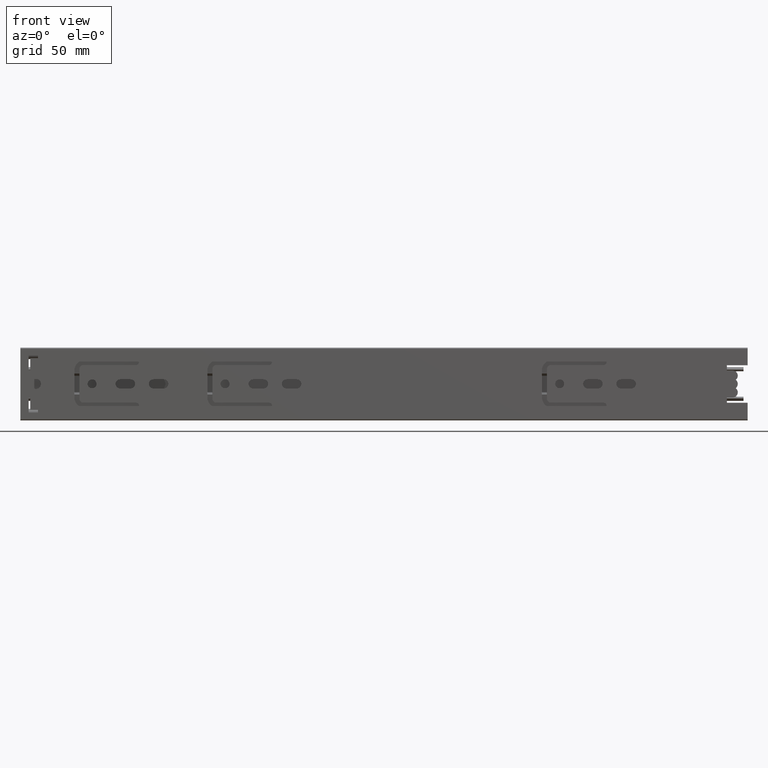
[diagram: clean part render]
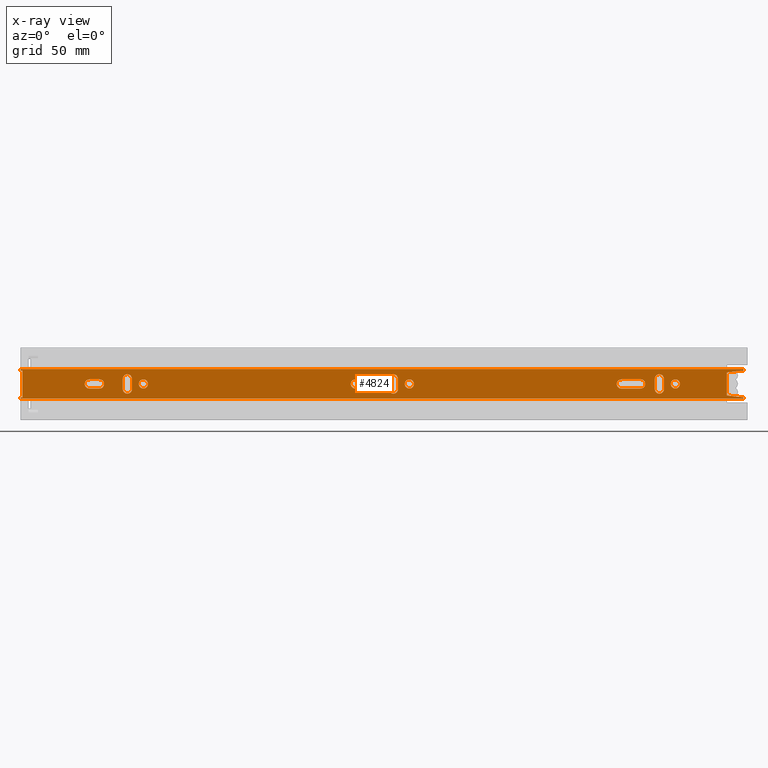
[diagram: x-ray — body ghosted, one internal face saturated and labeled with its STEP entity id]
A machine part, front view, then the same camera in x-ray: the body is ghosted and one INTERNAL B-rep face — a face not visible from any outside direction — is saturated and labeled: STEP entity #4824.
In plain terms, the highlighted planar face has unit normal (0, -1, 0).
Its self-contained STEP definition (entity closure, byte-faithful):
#203=FACE_BOUND('',#725,.T.);
#204=FACE_BOUND('',#726,.T.);
#205=FACE_BOUND('',#727,.T.);
#206=FACE_BOUND('',#728,.T.);
#207=FACE_BOUND('',#729,.T.);
#208=FACE_BOUND('',#730,.T.);
#209=FACE_BOUND('',#731,.T.);
#210=FACE_BOUND('',#732,.T.);
#211=FACE_BOUND('',#733,.T.);
#423=FACE_OUTER_BOUND('',#724,.T.);
#724=EDGE_LOOP('',(#4255,#4256,#4257,#4258,#4259,#4260,#4261,#4262,#4263,
#4264,#4265,#4266));
#725=EDGE_LOOP('',(#4267,#4268,#4269,#4270));
#726=EDGE_LOOP('',(#4271,#4272,#4273,#4274));
#727=EDGE_LOOP('',(#4275,#4276,#4277,#4278));
#728=EDGE_LOOP('',(#4279));
#729=EDGE_LOOP('',(#4280));
#730=EDGE_LOOP('',(#4281));
#731=EDGE_LOOP('',(#4282,#4283,#4284,#4285));
#732=EDGE_LOOP('',(#4286,#4287,#4288,#4289));
#733=EDGE_LOOP('',(#4290,#4291,#4292,#4293));
#1101=LINE('',#7638,#1599);
#1105=LINE('',#7650,#1603);
#1114=LINE('',#7680,#1612);
#1118=LINE('',#7693,#1616);
#1125=LINE('',#7714,#1623);
#1129=LINE('',#7722,#1627);
#1132=LINE('',#7727,#1630);
#1147=LINE('',#7787,#1645);
#1152=LINE('',#7800,#1650);
#1155=LINE('',#7807,#1653);
#1158=LINE('',#7816,#1656);
#1161=LINE('',#7823,#1659);
#1164=LINE('',#7832,#1662);
#1167=LINE('',#7839,#1665);
#1170=LINE('',#7857,#1668);
#1173=LINE('',#7864,#1671);
#1176=LINE('',#7873,#1674);
#1179=LINE('',#7880,#1677);
#1182=LINE('',#7889,#1680);
#1185=LINE('',#7896,#1683);
#1191=LINE('',#7911,#1689);
#1194=LINE('',#7918,#1692);
#1195=LINE('',#7920,#1693);
#1196=LINE('',#7922,#1694);
#1599=VECTOR('',#6237,0.649999999999999);
#1603=VECTOR('',#6245,0.649999999999999);
#1612=VECTOR('',#6274,348.);
#1616=VECTOR('',#6288,0.650000000000001);
#1623=VECTOR('',#6309,8.06225774829853);
#1627=VECTOR('',#6315,11.);
#1630=VECTOR('',#6320,8.06225774829853);
#1645=VECTOR('',#6369,0.649999999999997);
#1650=VECTOR('',#6382,9.29999999999996);
#1653=VECTOR('',#6391,9.29999999999996);
#1656=VECTOR('',#6400,4.89999999999999);
#1659=VECTOR('',#6409,4.89999999999999);
#1662=VECTOR('',#6418,4.9);
#1665=VECTOR('',#6427,4.9);
#1668=VECTOR('',#6448,4.9);
#1671=VECTOR('',#6457,4.9);
#1674=VECTOR('',#6466,4.90000000000003);
#1677=VECTOR('',#6475,4.90000000000003);
#1680=VECTOR('',#6484,9.3);
#1683=VECTOR('',#6493,9.3);
#1689=VECTOR('',#6507,13.);
#1692=VECTOR('',#6516,1.00000000000001);
#1693=VECTOR('',#6519,1.00000000000001);
#1694=VECTOR('',#6522,348.);
#1923=CIRCLE('',#5207,2.2);
#1924=CIRCLE('',#5210,2.2);
#1925=CIRCLE('',#5213,2.2);
#1926=CIRCLE('',#5216,2.2);
#1927=CIRCLE('',#5219,2.2);
#1928=CIRCLE('',#5222,2.2);
#1929=CIRCLE('',#5225,2.2);
#1930=CIRCLE('',#5227,2.2);
#1931=CIRCLE('',#5229,2.2);
#1932=CIRCLE('',#5231,2.2);
#1933=CIRCLE('',#5234,2.2);
#1934=CIRCLE('',#5237,2.2);
#1935=CIRCLE('',#5240,2.2);
#1936=CIRCLE('',#5243,2.2);
#1937=CIRCLE('',#5246,2.2);
#2266=VERTEX_POINT('',#7635);
#2267=VERTEX_POINT('',#7637);
#2272=VERTEX_POINT('',#7647);
#2273=VERTEX_POINT('',#7649);
#2284=VERTEX_POINT('',#7679);
#2288=VERTEX_POINT('',#7692);
#2294=VERTEX_POINT('',#7712);
#2295=VERTEX_POINT('',#7713);
#2298=VERTEX_POINT('',#7721);
#2327=VERTEX_POINT('',#7786);
#2329=VERTEX_POINT('',#7793);
#2330=VERTEX_POINT('',#7794);
#2331=VERTEX_POINT('',#7799);
#2332=VERTEX_POINT('',#7803);
#2333=VERTEX_POINT('',#7809);
#2334=VERTEX_POINT('',#7810);
#2335=VERTEX_POINT('',#7815);
#2336=VERTEX_POINT('',#7819);
#2337=VERTEX_POINT('',#7825);
#2338=VERTEX_POINT('',#7826);
#2339=VERTEX_POINT('',#7831);
#2340=VERTEX_POINT('',#7835);
#2341=VERTEX_POINT('',#7841);
#2342=VERTEX_POINT('',#7844);
#2343=VERTEX_POINT('',#7847);
#2344=VERTEX_POINT('',#7850);
#2345=VERTEX_POINT('',#7851);
#2346=VERTEX_POINT('',#7856);
#2347=VERTEX_POINT('',#7860);
#2348=VERTEX_POINT('',#7866);
#2349=VERTEX_POINT('',#7867);
#2350=VERTEX_POINT('',#7872);
#2351=VERTEX_POINT('',#7876);
#2352=VERTEX_POINT('',#7882);
#2353=VERTEX_POINT('',#7883);
#2354=VERTEX_POINT('',#7888);
#2355=VERTEX_POINT('',#7892);
#2359=VERTEX_POINT('',#7908);
#2360=VERTEX_POINT('',#7910);
#2876=EDGE_CURVE('',#2266,#2267,#1101,.T.);
#2882=EDGE_CURVE('',#2272,#2273,#1105,.T.);
#2897=EDGE_CURVE('',#2273,#2284,#1114,.T.);
#2904=EDGE_CURVE('',#2284,#2288,#1118,.T.);
#2914=EDGE_CURVE('',#2294,#2295,#1125,.T.);
#2918=EDGE_CURVE('',#2295,#2298,#1129,.T.);
#2921=EDGE_CURVE('',#2298,#2288,#1132,.T.);
#2951=EDGE_CURVE('',#2294,#2327,#1147,.T.);
#2955=EDGE_CURVE('',#2329,#2330,#1923,.T.);
#2958=EDGE_CURVE('',#2330,#2331,#1152,.T.);
#2960=EDGE_CURVE('',#2331,#2332,#1924,.T.);
#2962=EDGE_CURVE('',#2332,#2329,#1155,.T.);
#2963=EDGE_CURVE('',#2333,#2334,#1925,.T.);
#2966=EDGE_CURVE('',#2334,#2335,#1158,.T.);
#2968=EDGE_CURVE('',#2335,#2336,#1926,.T.);
#2970=EDGE_CURVE('',#2336,#2333,#1161,.T.);
#2971=EDGE_CURVE('',#2337,#2338,#1927,.T.);
#2974=EDGE_CURVE('',#2338,#2339,#1164,.T.);
#2976=EDGE_CURVE('',#2339,#2340,#1928,.T.);
#2978=EDGE_CURVE('',#2340,#2337,#1167,.T.);
#2979=EDGE_CURVE('',#2341,#2341,#1929,.T.);
#2980=EDGE_CURVE('',#2342,#2342,#1930,.T.);
#2981=EDGE_CURVE('',#2343,#2343,#1931,.T.);
#2982=EDGE_CURVE('',#2344,#2345,#1932,.T.);
#2985=EDGE_CURVE('',#2345,#2346,#1170,.T.);
#2987=EDGE_CURVE('',#2346,#2347,#1933,.T.);
#2989=EDGE_CURVE('',#2347,#2344,#1173,.T.);
#2990=EDGE_CURVE('',#2348,#2349,#1934,.T.);
#2993=EDGE_CURVE('',#2349,#2350,#1176,.T.);
#2995=EDGE_CURVE('',#2350,#2351,#1935,.T.);
#2997=EDGE_CURVE('',#2351,#2348,#1179,.T.);
#2998=EDGE_CURVE('',#2352,#2353,#1936,.T.);
#3001=EDGE_CURVE('',#2353,#2354,#1182,.T.);
#3003=EDGE_CURVE('',#2354,#2355,#1937,.T.);
#3005=EDGE_CURVE('',#2355,#2352,#1185,.T.);
#3012=EDGE_CURVE('',#2360,#2359,#1191,.T.);
#3016=EDGE_CURVE('',#2359,#2267,#1194,.T.);
#3017=EDGE_CURVE('',#2272,#2360,#1195,.T.);
#3018=EDGE_CURVE('',#2266,#2327,#1196,.T.);
#4255=ORIENTED_EDGE('',*,*,#2921,.T.);
#4256=ORIENTED_EDGE('',*,*,#2904,.F.);
#4257=ORIENTED_EDGE('',*,*,#2897,.F.);
#4258=ORIENTED_EDGE('',*,*,#2882,.F.);
#4259=ORIENTED_EDGE('',*,*,#3017,.T.);
#4260=ORIENTED_EDGE('',*,*,#3012,.T.);
#4261=ORIENTED_EDGE('',*,*,#3016,.T.);
#4262=ORIENTED_EDGE('',*,*,#2876,.F.);
#4263=ORIENTED_EDGE('',*,*,#3018,.T.);
#4264=ORIENTED_EDGE('',*,*,#2951,.F.);
#4265=ORIENTED_EDGE('',*,*,#2914,.T.);
#4266=ORIENTED_EDGE('',*,*,#2918,.T.);
#4267=ORIENTED_EDGE('',*,*,#2960,.T.);
#4268=ORIENTED_EDGE('',*,*,#2962,.T.);
#4269=ORIENTED_EDGE('',*,*,#2955,.T.);
#4270=ORIENTED_EDGE('',*,*,#2958,.T.);
#4271=ORIENTED_EDGE('',*,*,#2968,.T.);
#4272=ORIENTED_EDGE('',*,*,#2970,.T.);
#4273=ORIENTED_EDGE('',*,*,#2963,.T.);
#4274=ORIENTED_EDGE('',*,*,#2966,.T.);
#4275=ORIENTED_EDGE('',*,*,#2976,.T.);
#4276=ORIENTED_EDGE('',*,*,#2978,.T.);
#4277=ORIENTED_EDGE('',*,*,#2971,.T.);
#4278=ORIENTED_EDGE('',*,*,#2974,.T.);
#4279=ORIENTED_EDGE('',*,*,#2979,.T.);
#4280=ORIENTED_EDGE('',*,*,#2980,.T.);
#4281=ORIENTED_EDGE('',*,*,#2981,.T.);
#4282=ORIENTED_EDGE('',*,*,#2987,.T.);
#4283=ORIENTED_EDGE('',*,*,#2989,.T.);
#4284=ORIENTED_EDGE('',*,*,#2982,.T.);
#4285=ORIENTED_EDGE('',*,*,#2985,.T.);
#4286=ORIENTED_EDGE('',*,*,#2995,.T.);
#4287=ORIENTED_EDGE('',*,*,#2997,.T.);
#4288=ORIENTED_EDGE('',*,*,#2990,.T.);
#4289=ORIENTED_EDGE('',*,*,#2993,.T.);
#4290=ORIENTED_EDGE('',*,*,#3003,.T.);
#4291=ORIENTED_EDGE('',*,*,#3005,.T.);
#4292=ORIENTED_EDGE('',*,*,#2998,.T.);
#4293=ORIENTED_EDGE('',*,*,#3001,.T.);
#4587=PLANE('',#5256);
#4824=ADVANCED_FACE('',(#423,#203,#204,#205,#206,#207,#208,#209,#210,#211),
#4587,.T.);
#5207=AXIS2_PLACEMENT_3D('',#7795,#6376,#6377);
#5210=AXIS2_PLACEMENT_3D('',#7804,#6386,#6387);
#5213=AXIS2_PLACEMENT_3D('',#7811,#6394,#6395);
#5216=AXIS2_PLACEMENT_3D('',#7820,#6404,#6405);
#5219=AXIS2_PLACEMENT_3D('',#7827,#6412,#6413);
#5222=AXIS2_PLACEMENT_3D('',#7836,#6422,#6423);
#5225=AXIS2_PLACEMENT_3D('',#7842,#6430,#6431);
#5227=AXIS2_PLACEMENT_3D('',#7845,#6434,#6435);
#5229=AXIS2_PLACEMENT_3D('',#7848,#6438,#6439);
#5231=AXIS2_PLACEMENT_3D('',#7852,#6442,#6443);
#5234=AXIS2_PLACEMENT_3D('',#7861,#6452,#6453);
#5237=AXIS2_PLACEMENT_3D('',#7868,#6460,#6461);
#5240=AXIS2_PLACEMENT_3D('',#7877,#6470,#6471);
#5243=AXIS2_PLACEMENT_3D('',#7884,#6478,#6479);
#5246=AXIS2_PLACEMENT_3D('',#7893,#6488,#6489);
#5256=AXIS2_PLACEMENT_3D('',#7921,#6520,#6521);
#6237=DIRECTION('',(0.,0.,1.));
#6245=DIRECTION('',(0.,0.,1.));
#6274=DIRECTION('',(1.,0.,0.));
#6288=DIRECTION('',(0.,0.,-1.));
#6309=DIRECTION('',(-0.992277876713668,0.,0.124034734589209));
#6315=DIRECTION('',(0.,0.,1.));
#6320=DIRECTION('',(0.992277876713668,0.,0.124034734589209));
#6369=DIRECTION('',(0.,0.,-1.));
#6376=DIRECTION('center_axis',(0.,1.,0.));
#6377=DIRECTION('ref_axis',(0.,0.,1.));
#6382=DIRECTION('',(-1.,0.,0.));
#6386=DIRECTION('center_axis',(0.,1.,0.));
#6387=DIRECTION('ref_axis',(0.,0.,-1.));
#6391=DIRECTION('',(1.,0.,0.));
#6394=DIRECTION('center_axis',(0.,1.,0.));
#6395=DIRECTION('ref_axis',(1.,0.,0.));
#6400=DIRECTION('',(0.,0.,1.));
#6404=DIRECTION('center_axis',(0.,1.,0.));
#6405=DIRECTION('ref_axis',(-1.,0.,-5.04646829375066E-16));
#6409=DIRECTION('',(0.,0.,-1.));
#6412=DIRECTION('center_axis',(0.,1.,0.));
#6413=DIRECTION('ref_axis',(0.,0.,-1.));
#6418=DIRECTION('',(-1.,0.,0.));
#6422=DIRECTION('center_axis',(0.,1.,0.));
#6423=DIRECTION('ref_axis',(0.,0.,1.));
#6427=DIRECTION('',(1.,0.,0.));
#6430=DIRECTION('center_axis',(0.,1.,0.));
#6431=DIRECTION('ref_axis',(-1.,0.,0.));
#6434=DIRECTION('center_axis',(0.,1.,0.));
#6435=DIRECTION('ref_axis',(-1.,0.,0.));
#6438=DIRECTION('center_axis',(0.,1.,0.));
#6439=DIRECTION('ref_axis',(-1.,0.,0.));
#6442=DIRECTION('center_axis',(0.,1.,0.));
#6443=DIRECTION('ref_axis',(1.,0.,0.));
#6448=DIRECTION('',(0.,0.,1.));
#6452=DIRECTION('center_axis',(0.,1.,0.));
#6453=DIRECTION('ref_axis',(-1.,0.,0.));
#6457=DIRECTION('',(-1.81260901979617E-15,0.,-1.));
#6460=DIRECTION('center_axis',(0.,1.,0.));
#6461=DIRECTION('ref_axis',(1.,0.,-6.05576195250098E-15));
#6466=DIRECTION('',(7.25043607918466E-15,0.,1.));
#6470=DIRECTION('center_axis',(0.,1.,0.));
#6471=DIRECTION('ref_axis',(-1.,0.,6.05576195250088E-15));
#6475=DIRECTION('',(-7.25043607918466E-15,0.,-1.));
#6478=DIRECTION('center_axis',(0.,1.,0.));
#6479=DIRECTION('ref_axis',(0.,0.,1.));
#6484=DIRECTION('',(-1.,0.,-4.7751527940867E-16));
#6488=DIRECTION('center_axis',(0.,1.,0.));
#6489=DIRECTION('ref_axis',(0.,0.,-1.));
#6493=DIRECTION('',(1.,0.,2.38757639704335E-16));
#6507=DIRECTION('',(0.,0.,-1.));
#6516=DIRECTION('',(-1.,0.,0.));
#6519=DIRECTION('',(1.,0.,0.));
#6520=DIRECTION('center_axis',(0.,-1.,0.));
#6521=DIRECTION('ref_axis',(0.,0.,-1.));
#6522=DIRECTION('',(1.,0.,0.));
#7635=CARTESIAN_POINT('',(-174.,11.7,-7.15));
#7637=CARTESIAN_POINT('',(-174.,11.7,-6.5));
#7638=CARTESIAN_POINT('',(-174.,11.7,1.4328367550024E-15));
#7647=CARTESIAN_POINT('',(-174.,11.7,6.5));
#7649=CARTESIAN_POINT('',(-174.,11.7,7.15));
#7650=CARTESIAN_POINT('',(-174.,11.7,1.4328367550024E-15));
#7679=CARTESIAN_POINT('',(174.,11.7,7.15));
#7680=CARTESIAN_POINT('',(0.,11.7,7.15));
#7692=CARTESIAN_POINT('',(174.,11.7,6.5));
#7693=CARTESIAN_POINT('',(174.,11.7,7.15));
#7712=CARTESIAN_POINT('',(174.,11.7,-6.5));
#7713=CARTESIAN_POINT('',(166.,11.7,-5.5));
#7714=CARTESIAN_POINT('',(83.9384615384616,11.7,4.75769230769236));
#7721=CARTESIAN_POINT('',(166.,11.7,5.5));
#7722=CARTESIAN_POINT('',(166.,11.7,2.75));
#7727=CARTESIAN_POINT('',(87.9384615384616,11.7,-4.25769230769233));
#7786=CARTESIAN_POINT('',(174.,11.7,-7.15));
#7787=CARTESIAN_POINT('',(174.,11.7,7.15));
#7793=CARTESIAN_POINT('',(-3.50000000000001,11.7,2.2));
#7794=CARTESIAN_POINT('',(-3.50000000000001,11.7,-2.2));
#7795=CARTESIAN_POINT('Origin',(-3.50000000000001,11.7,0.));
#7799=CARTESIAN_POINT('',(-12.8,11.7,-2.2));
#7800=CARTESIAN_POINT('',(-6.39999999999999,11.7,-2.2));
#7803=CARTESIAN_POINT('',(-12.8,11.7,2.2));
#7804=CARTESIAN_POINT('Origin',(-12.8,11.7,0.));
#7807=CARTESIAN_POINT('',(-1.75000000000001,11.7,2.2));
#7809=CARTESIAN_POINT('',(7.70000000000007,11.7,-2.45000000000013));
#7810=CARTESIAN_POINT('',(3.29999999999998,11.7,-2.45000000000013));
#7811=CARTESIAN_POINT('Origin',(5.50000000000001,11.7,-2.45000000000013));
#7815=CARTESIAN_POINT('',(3.29999999999998,11.7,2.44999999999986));
#7816=CARTESIAN_POINT('',(3.29999999999998,11.7,1.22499999999993));
#7819=CARTESIAN_POINT('',(7.70000000000007,11.7,2.44999999999986));
#7820=CARTESIAN_POINT('Origin',(5.50000000000001,11.7,2.44999999999986));
#7823=CARTESIAN_POINT('',(7.70000000000007,11.7,-1.22500000000006));
#7825=CARTESIAN_POINT('',(-135.9,11.7,2.2));
#7826=CARTESIAN_POINT('',(-135.9,11.7,-2.2));
#7827=CARTESIAN_POINT('Origin',(-135.9,11.7,0.));
#7831=CARTESIAN_POINT('',(-140.8,11.7,-2.2));
#7832=CARTESIAN_POINT('',(-70.4,11.7,-2.2));
#7835=CARTESIAN_POINT('',(-140.8,11.7,2.2));
#7836=CARTESIAN_POINT('Origin',(-140.8,11.7,0.));
#7839=CARTESIAN_POINT('',(-67.95,11.7,2.2));
#7841=CARTESIAN_POINT('',(15.4,11.7,1.9510237534379E-15));
#7842=CARTESIAN_POINT('Origin',(13.2,11.7,2.22044604925031E-15));
#7844=CARTESIAN_POINT('',(-112.6,11.7,8.40800728812739E-16));
#7845=CARTESIAN_POINT('Origin',(-114.8,11.7,1.11022302462516E-15));
#7847=CARTESIAN_POINT('',(143.4,11.7,-2.69422295812418E-16));
#7848=CARTESIAN_POINT('Origin',(141.2,11.7,0.));
#7850=CARTESIAN_POINT('',(-120.3,11.7,-2.45));
#7851=CARTESIAN_POINT('',(-124.7,11.7,-2.45));
#7852=CARTESIAN_POINT('Origin',(-122.5,11.7,-2.45));
#7856=CARTESIAN_POINT('',(-124.7,11.7,2.45));
#7857=CARTESIAN_POINT('',(-124.7,11.7,1.225));
#7860=CARTESIAN_POINT('',(-120.3,11.7,2.45));
#7861=CARTESIAN_POINT('Origin',(-122.5,11.7,2.45));
#7864=CARTESIAN_POINT('',(-120.3,11.7,-1.22499999999989));
#7866=CARTESIAN_POINT('',(135.7,11.7,-2.45000000000015));
#7867=CARTESIAN_POINT('',(131.3,11.7,-2.45000000000012));
#7868=CARTESIAN_POINT('Origin',(133.5,11.7,-2.45000000000013));
#7872=CARTESIAN_POINT('',(131.3,11.7,2.44999999999991));
#7873=CARTESIAN_POINT('',(131.3,11.7,1.22499999999948));
#7876=CARTESIAN_POINT('',(135.7,11.7,2.44999999999988));
#7877=CARTESIAN_POINT('Origin',(133.5,11.7,2.44999999999989));
#7880=CARTESIAN_POINT('',(135.7,11.7,-1.22500000000056));
#7882=CARTESIAN_POINT('',(124.5,11.7,2.20000000000002));
#7883=CARTESIAN_POINT('',(124.5,11.7,-2.19999999999998));
#7884=CARTESIAN_POINT('Origin',(124.5,11.7,1.11022302462516E-15));
#7888=CARTESIAN_POINT('',(115.2,11.7,-2.19999999999998));
#7889=CARTESIAN_POINT('',(57.6,11.7,-2.20000000000001));
#7892=CARTESIAN_POINT('',(115.2,11.7,2.20000000000002));
#7893=CARTESIAN_POINT('Origin',(115.2,11.7,2.1094237467878E-14));
#7896=CARTESIAN_POINT('',(62.25,11.7,2.20000000000001));
#7908=CARTESIAN_POINT('',(-173.,11.7,-6.5));
#7910=CARTESIAN_POINT('',(-173.,11.7,6.5));
#7911=CARTESIAN_POINT('',(-173.,11.7,-3.25));
#7918=CARTESIAN_POINT('',(-87.,11.7,-6.5));
#7920=CARTESIAN_POINT('',(-86.5,11.7,6.5));
#7921=CARTESIAN_POINT('Origin',(0.,11.7,1.4328367550024E-15));
#7922=CARTESIAN_POINT('',(0.,11.7,-7.15));